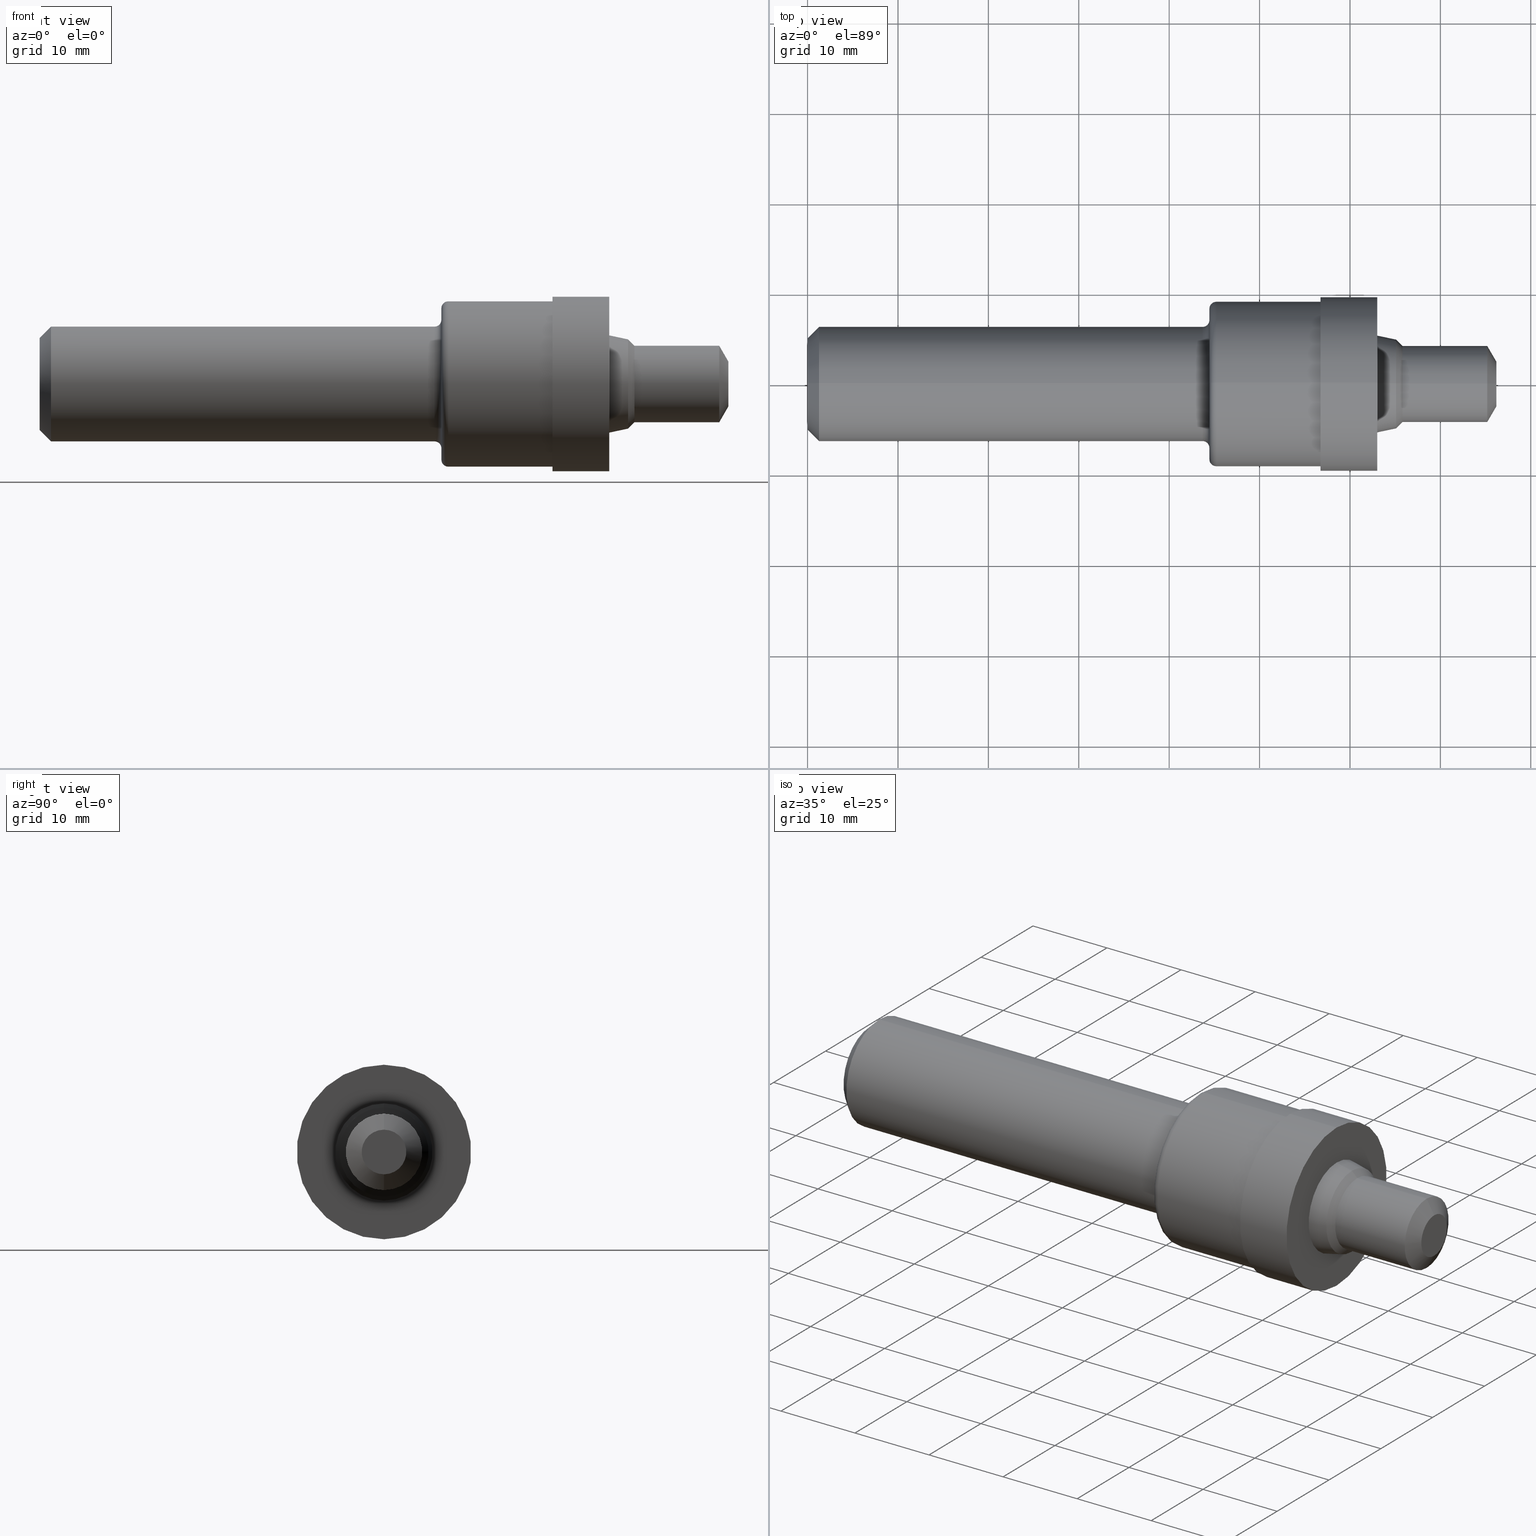
[diagram: canonical four-view strip — front | top / right | iso, engineering-drawing reading convention]
A machine part, canonical four-view strip (front | top / right | iso — engineering-drawing reading convention). The complete STEP part file that produces these views, byte-faithful:
ISO-10303-21;
HEADER;
FILE_DESCRIPTION (( 'STEP AP214' ),
    '1' );
FILE_NAME ('MS16142-3R-SolidModel.STEP',
    '2018-05-15T17:36:39',
    ( '' ),
    ( '' ),
    'SwSTEP 2.0',
    'SolidWorks 2017',
    '' );
FILE_SCHEMA (( 'AUTOMOTIVE_DESIGN' ));
ENDSEC;

DATA;
#1 = VERTEX_POINT ( 'NONE', #440 ) ;
#2 = EDGE_LOOP ( 'NONE', ( #675, #311, #480, #378 ) ) ;
#3 = EDGE_LOOP ( 'NONE', ( #428, #34 ) ) ;
#4 = ORIENTED_EDGE ( 'NONE', *, *, #609, .T. ) ;
#5 = ORIENTED_EDGE ( 'NONE', *, *, #504, .F. ) ;
#6 = DIRECTION ( 'NONE',  ( 0.0000000000000000000, 0.0000000000000000000, 1.000000000000000000 ) ) ;
#7 = MANIFOLD_SOLID_BREP ( '5BF40844-FE27-4298-8A7F-57BA77D21242-GAAFaceID13', #579 ) ;
#8 = DIRECTION ( 'NONE',  ( 0.0000000000000000000, 0.0000000000000000000, 1.000000000000000000 ) ) ;
#9 = DIRECTION ( 'NONE',  ( -1.000000000000000000, -0.0000000000000000000, -0.0000000000000000000 ) ) ;
#10 = DIRECTION ( 'NONE',  ( 0.0000000000000000000, -1.224646799147352200E-016, 1.000000000000000000 ) ) ;
#11 = CARTESIAN_POINT ( 'NONE',  ( 0.0000000000000000000, 0.0000000000000000000, 0.0000000000000000000 ) ) ;
#12 = ORIENTED_EDGE ( 'NONE', *, *, #274, .F. ) ;
#13 =( NAMED_UNIT ( * ) SI_UNIT ( $, .STERADIAN. ) SOLID_ANGLE_UNIT ( ) );
#14 = EDGE_CURVE ( 'NONE', #487, #216, #262, .T. ) ;
#15 = DIRECTION ( 'NONE',  ( -1.000000000000000000, -0.0000000000000000000, -0.0000000000000000000 ) ) ;
#16 = LINE ( 'NONE', #194, #589 ) ;
#17 = DIRECTION ( 'NONE',  ( -1.000000000000000000, -0.0000000000000000000, -0.0000000000000000000 ) ) ;
#18 = ORIENTED_EDGE ( 'NONE', *, *, #539, .F. ) ;
#19 = DIRECTION ( 'NONE',  ( -1.000000000000000000, -0.0000000000000000000, -0.0000000000000000000 ) ) ;
#20 = PRODUCT ( 'MS16142-3R-SolidModel', 'MS16142-3R-SolidModel', '', ( #651 ) ) ;
#21 = DIRECTION ( 'NONE',  ( -1.000000000000000000, -0.0000000000000000000, -0.0000000000000000000 ) ) ;
#22 = CARTESIAN_POINT ( 'NONE',  ( 2.563000000000000200, 0.0000000000000000000, 0.0000000000000000000 ) ) ;
#23 =( LENGTH_UNIT ( ) NAMED_UNIT ( * ) SI_UNIT ( $, .METRE. ) );
#24 = EDGE_CURVE ( 'NONE', #384, #535, #683, .T. ) ;
#25 = DIRECTION ( 'NONE',  ( 0.0000000000000000000, 0.0000000000000000000, 1.000000000000000000 ) ) ;
#26 = EDGE_CURVE ( 'NONE', #600, #108, #129, .T. ) ;
#27 = FACE_BOUND ( 'NONE', #3, .T. ) ;
#28 = PRESENTATION_LAYER_ASSIGNMENT (  '', '', ( #688 ) ) ;
#29 = CIRCLE ( 'NONE', #106, 0.1943203619430581800 ) ;
#30 = DIRECTION ( 'NONE',  ( 1.000000000000000000, 0.0000000000000000000, 0.0000000000000000000 ) ) ;
#31 = ADVANCED_FACE ( 'NONE', ( #415 ), #214, .F. ) ;
#32 = ORIENTED_EDGE ( 'NONE', *, *, #160, .T. ) ;
#33 = CARTESIAN_POINT ( 'NONE',  ( 2.563000000000000200, 2.486463844910866900E-017, -0.1943203619430581800 ) ) ;
#34 = ORIENTED_EDGE ( 'NONE', *, *, #316, .T. ) ;
#35 = AXIS2_PLACEMENT_3D ( 'NONE', #225, #554, #173 ) ;
#36 = DIRECTION ( 'NONE',  ( 0.0000000000000000000, 0.0000000000000000000, 1.000000000000000000 ) ) ;
#37 = EDGE_LOOP ( 'NONE', ( #572, #297, #574, #532 ) ) ;
#38 = DIRECTION ( 'NONE',  ( -1.000000000000000000, -0.0000000000000000000, -0.0000000000000000000 ) ) ;
#39 = CIRCLE ( 'NONE', #323, 0.1943203619430581800 ) ;
#40 = ORIENTED_EDGE ( 'NONE', *, *, #306, .F. ) ;
#41 = DIRECTION ( 'NONE',  ( 0.0000000000000000000, 0.0000000000000000000, 1.000000000000000000 ) ) ;
#42 = AXIS2_PLACEMENT_3D ( 'NONE', #603, #224, #391 ) ;
#43 = CARTESIAN_POINT ( 'NONE',  ( 1.720000000000000000, 0.0000000000000000000, 0.0000000000000000000 ) ) ;
#44 = VECTOR ( 'NONE', #62, 39.37007874015748100 ) ;
#45 = DIRECTION ( 'NONE',  ( -1.000000000000000000, -0.0000000000000000000, -0.0000000000000000000 ) ) ;
#46 = LENGTH_MEASURE_WITH_UNIT ( LENGTH_MEASURE( 0.02539999999999999900 ), #551 );
#47 = VECTOR ( 'NONE', #131, 39.37007874015748900 ) ;
#48 = AXIS2_PLACEMENT_3D ( 'NONE', #235, #619, #290 ) ;
#49 = ORIENTED_EDGE ( 'NONE', *, *, #207, .F. ) ;
#50 = EDGE_LOOP ( 'NONE', ( #596, #269, #32, #586 ) ) ;
#51 = ORIENTED_EDGE ( 'NONE', *, *, #264, .T. ) ;
#52 = CIRCLE ( 'NONE', #253, 0.3799999999999999500 ) ;
#53 = VERTEX_POINT ( 'NONE', #177 ) ;
#54 = EDGE_CURVE ( 'NONE', #384, #317, #249, .T. ) ;
#55 = LENGTH_MEASURE_WITH_UNIT ( LENGTH_MEASURE( 0.02539999999999999900 ), #178 );
#56 = CIRCLE ( 'NONE', #587, 0.1665000000000000100 ) ;
#57 = VECTOR ( 'NONE', #611, 39.37007874015748900 ) ;
#58 = STYLED_ITEM ( 'NONE', ( #208 ), #7 ) ;
#59 = EDGE_CURVE ( 'NONE', #204, #367, #113, .T. ) ;
#60 = MECHANICAL_DESIGN_GEOMETRIC_PRESENTATION_REPRESENTATION (  '', ( #688 ), #103 ) ;
#61 = VERTEX_POINT ( 'NONE', #509 ) ;
#62 = DIRECTION ( 'NONE',  ( -1.000000000000000000, -0.0000000000000000000, -0.0000000000000000000 ) ) ;
#63 = CARTESIAN_POINT ( 'NONE',  ( 2.590820361943058100, 2.209387506603778400E-017, -0.1665000000000000100 ) ) ;
#64 = DIRECTION ( 'NONE',  ( -1.000000000000000000, -0.0000000000000000000, -0.0000000000000000000 ) ) ;
#65 = AXIS2_PLACEMENT_3D ( 'NONE', #11, #80, #430 ) ;
#66 =( NAMED_UNIT ( * ) SI_UNIT ( $, .STERADIAN. ) SOLID_ANGLE_UNIT ( ) );
#67 = CARTESIAN_POINT ( 'NONE',  ( 1.750000000000000000, 0.0000000000000000000, 0.0000000000000000000 ) ) ;
#68 = ORIENTED_EDGE ( 'NONE', *, *, #26, .T. ) ;
#69 = CARTESIAN_POINT ( 'NONE',  ( 3.000000000000000400, 0.0000000000000000000, 0.09721796769724436200 ) ) ;
#70 = CARTESIAN_POINT ( 'NONE',  ( 0.05000000000000000300, 3.059780027669662500E-017, 0.2498500000000000400 ) ) ;
#71 = LINE ( 'NONE', #674, #315 ) ;
#72 = DIRECTION ( 'NONE',  ( -1.000000000000000000, -0.0000000000000000000, -0.0000000000000000000 ) ) ;
#73 = EDGE_LOOP ( 'NONE', ( #278, #692, #313, #636 ) ) ;
#74 = DIRECTION ( 'NONE',  ( 0.0000000000000000000, 0.0000000000000000000, 1.000000000000000000 ) ) ;
#75 = CARTESIAN_POINT ( 'NONE',  ( 0.0000000000000000000, 0.0000000000000000000, 0.0000000000000000000 ) ) ;
#76 = CARTESIAN_POINT ( 'NONE',  ( 0.0000000000000000000, 0.0000000000000000000, 0.1665000000000000100 ) ) ;
#77 = AXIS2_PLACEMENT_3D ( 'NONE', #182, #374, #133 ) ;
#78 = DIRECTION ( 'NONE',  ( 0.0000000000000000000, 0.0000000000000000000, 1.000000000000000000 ) ) ;
#79 = FACE_OUTER_BOUND ( 'NONE', #50, .T. ) ;
#80 = DIRECTION ( 'NONE',  ( -1.000000000000000000, -0.0000000000000000000, -0.0000000000000000000 ) ) ;
#81 = ADVANCED_FACE ( 'NONE', ( #668 ), #360, .T. ) ;
#82 = LINE ( 'NONE', #447, #508 ) ;
#83 = ORIENTED_EDGE ( 'NONE', *, *, #531, .T. ) ;
#84 = SURFACE_SIDE_STYLE ('',( #356 ) ) ;
#85 = ORIENTED_EDGE ( 'NONE', *, *, #569, .F. ) ;
#86 = PLANE ( 'NONE',  #211 ) ;
#87 = DIRECTION ( 'NONE',  ( -0.7071067811865470200, 0.0000000000000000000, 0.7071067811865479100 ) ) ;
#88 = DIRECTION ( 'NONE',  ( 0.0000000000000000000, -1.000000000000000000, 0.0000000000000000000 ) ) ;
#89 = ORIENTED_EDGE ( 'NONE', *, *, #24, .F. ) ;
#90 = DIRECTION ( 'NONE',  ( -1.000000000000000000, -0.0000000000000000000, -0.0000000000000000000 ) ) ;
#91 = CONICAL_SURFACE ( 'NONE', #202, 0.09721796769724436200, 1.047197551196600100 ) ;
#92 = ORIENTED_EDGE ( 'NONE', *, *, #277, .T. ) ;
#93 = DIRECTION ( 'NONE',  ( -1.000000000000000000, -0.0000000000000000000, -0.0000000000000000000 ) ) ;
#94 = ORIENTED_EDGE ( 'NONE', *, *, #539, .T. ) ;
#95 = EDGE_CURVE ( 'NONE', #317, #322, #644, .T. ) ;
#96 = CARTESIAN_POINT ( 'NONE',  ( 0.0000000000000000000, 4.653657836759941700E-017, -0.3799999999999999500 ) ) ;
#97 = VECTOR ( 'NONE', #689, 39.37007874015748100 ) ;
#98 = CIRCLE ( 'NONE', #489, 0.3799999999999999500 ) ;
#99 = DIRECTION ( 'NONE',  ( 0.0000000000000000000, 0.0000000000000000000, 1.000000000000000000 ) ) ;
#100 = PRESENTATION_LAYER_ASSIGNMENT (  '', '', ( #58 ) ) ;
#101 = EDGE_CURVE ( 'NONE', #459, #584, #371, .T. ) ;
#102 = CARTESIAN_POINT ( 'NONE',  ( 0.0000000000000000000, 0.0000000000000000000, 0.0000000000000000000 ) ) ;
#103 =( GEOMETRIC_REPRESENTATION_CONTEXT ( 3 ) GLOBAL_UNCERTAINTY_ASSIGNED_CONTEXT ( ( #635 ) ) GLOBAL_UNIT_ASSIGNED_CONTEXT ( ( #377, #437, #66 ) ) REPRESENTATION_CONTEXT ( 'NONE', 'WORKASPACE' ) );
#104 = CONICAL_SURFACE ( 'NONE', #429, 0.1665000000000000100, 0.7853981633974489500 ) ;
#105 = ORIENTED_EDGE ( 'NONE', *, *, #531, .F. ) ;
#106 = AXIS2_PLACEMENT_3D ( 'NONE', #658, #505, #284 ) ;
#107 = FACE_OUTER_BOUND ( 'NONE', #559, .T. ) ;
#108 = VERTEX_POINT ( 'NONE', #555 ) ;
#109 = VERTEX_POINT ( 'NONE', #492 ) ;
#110 = ORIENTED_EDGE ( 'NONE', *, *, #348, .T. ) ;
#111 = EDGE_CURVE ( 'NONE', #460, #53, #98, .T. ) ;
#112 = CIRCLE ( 'NONE', #369, 0.1998500000000001700 ) ;
#113 = CIRCLE ( 'NONE', #305, 0.2798500000000004300 ) ;
#114 = AXIS2_PLACEMENT_3D ( 'NONE', #503, #19, #227 ) ;
#115 = EDGE_LOOP ( 'NONE', ( #435, #260, #590, #468 ) ) ;
#116 = DIMENSIONAL_EXPONENTS ( 1.000000000000000000, 0.0000000000000000000, 0.0000000000000000000, 0.0000000000000000000, 0.0000000000000000000, 0.0000000000000000000, 0.0000000000000000000 ) ;
#117 = ORIENTED_EDGE ( 'NONE', *, *, #236, .T. ) ;
#118 = CARTESIAN_POINT ( 'NONE',  ( 2.234000000000000400, 0.0000000000000000000, 0.0000000000000000000 ) ) ;
#119 = VECTOR ( 'NONE', #130, 39.37007874015748100 ) ;
#120 = ORIENTED_EDGE ( 'NONE', *, *, #373, .F. ) ;
#121 = DIRECTION ( 'NONE',  ( 0.0000000000000000000, 0.0000000000000000000, 1.000000000000000000 ) ) ;
#122 = DIRECTION ( 'NONE',  ( -1.000000000000000000, -0.0000000000000000000, -0.0000000000000000000 ) ) ;
#123 = CARTESIAN_POINT ( 'NONE',  ( 1.779999999999999800, 0.0000000000000000000, 0.0000000000000000000 ) ) ;
#124 = DIRECTION ( 'NONE',  ( -0.0000000000000000000, 0.0000000000000000000, 1.000000000000000000 ) ) ;
#125 = ADVANCED_FACE ( 'NONE', ( #540 ), #632, .T. ) ;
#126 = CIRCLE ( 'NONE', #477, 0.2498500000000000400 ) ;
#127 = DIRECTION ( 'NONE',  ( 0.0000000000000000000, 0.0000000000000000000, 1.000000000000000000 ) ) ;
#128 = APPLICATION_PROTOCOL_DEFINITION ( 'draft international standard', 'automotive_design', 1998, #276 ) ;
#129 = LINE ( 'NONE', #76, #396 ) ;
#130 = DIRECTION ( 'NONE',  ( -0.9781476007338054700, 0.0000000000000000000, 0.2079116908177598400 ) ) ;
#131 = DIRECTION ( 'NONE',  ( -0.4999999999999979500, 1.060575238724908000E-016, -0.8660254037844397100 ) ) ;
#132 = DIRECTION ( 'NONE',  ( 0.0000000000000000000, 0.0000000000000000000, 1.000000000000000000 ) ) ;
#133 = DIRECTION ( 'NONE',  ( 0.0000000000000000000, 0.0000000000000000000, -1.000000000000000000 ) ) ;
#134 = CARTESIAN_POINT ( 'NONE',  ( 2.481000000000000300, 0.0000000000000000000, 0.2117499999999999900 ) ) ;
#135 = ORIENTED_EDGE ( 'NONE', *, *, #536, .F. ) ;
#136 = PLANE ( 'NONE',  #399 ) ;
#137 = MECHANICAL_DESIGN_GEOMETRIC_PRESENTATION_REPRESENTATION (  '', ( #58 ), #159 ) ;
#138 = DIRECTION ( 'NONE',  ( -1.000000000000000000, -0.0000000000000000000, -0.0000000000000000000 ) ) ;
#139 = EDGE_CURVE ( 'NONE', #223, #349, #82, .T. ) ;
#140 = DIRECTION ( 'NONE',  ( -1.000000000000000000, -0.0000000000000000000, -0.0000000000000000000 ) ) ;
#141 = ORIENTED_EDGE ( 'NONE', *, *, #146, .T. ) ;
#142 = SHAPE_DEFINITION_REPRESENTATION ( #639, #189 ) ;
#143 = AXIS2_PLACEMENT_3D ( 'NONE', #662, #279, #229 ) ;
#144 = UNCERTAINTY_MEASURE_WITH_UNIT (LENGTH_MEASURE( 1.000000000000000100E-005 ), #602, 'distance_accuracy_value', 'NONE');
#145 = DIRECTION ( 'NONE',  ( 0.0000000000000000000, 0.0000000000000000000, 1.000000000000000000 ) ) ;
#146 = EDGE_CURVE ( 'NONE', #584, #459, #210, .T. ) ;
#147 = ORIENTED_EDGE ( 'NONE', *, *, #641, .F. ) ;
#148 = DIRECTION ( 'NONE',  ( -1.000000000000000000, -0.0000000000000000000, -0.0000000000000000000 ) ) ;
#149 = FACE_OUTER_BOUND ( 'NONE', #245, .T. ) ;
#150 = CARTESIAN_POINT ( 'NONE',  ( 1.750000000000000000, 4.225031457058367200E-017, -0.3299999999999999000 ) ) ;
#151 = DIRECTION ( 'NONE',  ( 0.0000000000000000000, 0.0000000000000000000, 1.000000000000000000 ) ) ;
#152 = AXIS2_PLACEMENT_3D ( 'NONE', #347, #30, #404 ) ;
#153 = CARTESIAN_POINT ( 'NONE',  ( 0.0000000000000000000, 0.0000000000000000000, 0.2498500000000002700 ) ) ;
#154 = ORIENTED_EDGE ( 'NONE', *, *, #111, .T. ) ;
#155 = ORIENTED_EDGE ( 'NONE', *, *, #14, .F. ) ;
#156 = ORIENTED_EDGE ( 'NONE', *, *, #469, .F. ) ;
#157 = VERTEX_POINT ( 'NONE', #286 ) ;
#158 = CIRCLE ( 'NONE', #361, 0.2798500000000004300 ) ;
#159 =( GEOMETRIC_REPRESENTATION_CONTEXT ( 3 ) GLOBAL_UNCERTAINTY_ASSIGNED_CONTEXT ( ( #144 ) ) GLOBAL_UNIT_ASSIGNED_CONTEXT ( ( #602, #507, #13 ) ) REPRESENTATION_CONTEXT ( 'NONE', 'WORKASPACE' ) );
#160 = EDGE_CURVE ( 'NONE', #584, #600, #197, .T. ) ;
#161 = CYLINDRICAL_SURFACE ( 'NONE', #65, 0.3799999999999999500 ) ;
#162 = CARTESIAN_POINT ( 'NONE',  ( 1.750000000000000000, 0.0000000000000000000, 0.3299999999999999000 ) ) ;
#163 = ORIENTED_EDGE ( 'NONE', *, *, #424, .T. ) ;
#164 = DIRECTION ( 'NONE',  ( 0.0000000000000000000, -1.224646799147353700E-016, 1.000000000000000000 ) ) ;
#165 = ORIENTED_EDGE ( 'NONE', *, *, #59, .T. ) ;
#166 = DIRECTION ( 'NONE',  ( -0.0000000000000000000, 0.0000000000000000000, 1.000000000000000000 ) ) ;
#167 = AXIS2_PLACEMENT_3D ( 'NONE', #557, #449, #397 ) ;
#168 = DIRECTION ( 'NONE',  ( 0.0000000000000000000, 0.0000000000000000000, 1.000000000000000000 ) ) ;
#169 = CARTESIAN_POINT ( 'NONE',  ( 3.000000000000000400, 0.0000000000000000000, 0.0000000000000000000 ) ) ;
#170 = ORIENTED_EDGE ( 'NONE', *, *, #59, .F. ) ;
#171 = DIRECTION ( 'NONE',  ( -1.000000000000000000, -0.0000000000000000000, -0.0000000000000000000 ) ) ;
#172 = EDGE_CURVE ( 'NONE', #600, #365, #231, .T. ) ;
#173 = DIRECTION ( 'NONE',  ( 0.0000000000000000000, 0.0000000000000000000, -1.000000000000000000 ) ) ;
#174 = TOROIDAL_SURFACE ( 'NONE', #363, 0.3299999999999999000, 0.03000000000000002300 ) ;
#175 = ORIENTED_EDGE ( 'NONE', *, *, #246, .F. ) ;
#176 = FILL_AREA_STYLE ('',( #552 ) ) ;
#177 = CARTESIAN_POINT ( 'NONE',  ( 2.234000000000000400, 0.0000000000000000000, 0.3799999999999999500 ) ) ;
#178 =( LENGTH_UNIT ( ) NAMED_UNIT ( * ) SI_UNIT ( $, .METRE. ) );
#179 = DIRECTION ( 'NONE',  ( -1.000000000000000000, -0.0000000000000000000, -0.0000000000000000000 ) ) ;
#180 = FACE_OUTER_BOUND ( 'NONE', #621, .T. ) ;
#181 = ADVANCED_FACE ( 'NONE', ( #485 ), #183, .T. ) ;
#182 = CARTESIAN_POINT ( 'NONE',  ( 2.234000000000000400, 0.3599999999999999900, 0.0000000000000000000 ) ) ;
#183 = CYLINDRICAL_SURFACE ( 'NONE', #691, 0.1665000000000000100 ) ;
#184 = CARTESIAN_POINT ( 'NONE',  ( 1.750000000000000000, 0.3299999999999999000, 0.0000000000000000000 ) ) ;
#185 = AXIS2_PLACEMENT_3D ( 'NONE', #409, #88, #462 ) ;
#186 = EDGE_LOOP ( 'NONE', ( #541, #175 ) ) ;
#187 = DIRECTION ( 'NONE',  ( 0.0000000000000000000, 0.0000000000000000000, -1.000000000000000000 ) ) ;
#188 = ORIENTED_EDGE ( 'NONE', *, *, #373, .T. ) ;
#189 = ADVANCED_BREP_SHAPE_REPRESENTATION ( 'MS16142-3R-SolidModel', ( #7, #455 ), #617 ) ;
#190 = DIRECTION ( 'NONE',  ( -1.000000000000000000, -0.0000000000000000000, -0.0000000000000000000 ) ) ;
#191 = VERTEX_POINT ( 'NONE', #230 ) ;
#192 = CIRCLE ( 'NONE', #185, 0.03000000000000002300 ) ;
#193 = ORIENTED_EDGE ( 'NONE', *, *, #353, .T. ) ;
#194 = CARTESIAN_POINT ( 'NONE',  ( 0.05000000000000000300, 3.059780027669662500E-017, 0.2498500000000000400 ) ) ;
#195 = FACE_BOUND ( 'NONE', #383, .T. ) ;
#196 = PRESENTATION_STYLE_ASSIGNMENT (( #218 ) ) ;
#197 = LINE ( 'NONE', #69, #57 ) ;
#198 = AXIS2_PLACEMENT_3D ( 'NONE', #443, #275, #132 ) ;
#199 = EDGE_CURVE ( 'NONE', #459, #365, #473, .T. ) ;
#200 = DIRECTION ( 'NONE',  ( 0.0000000000000000000, 0.0000000000000000000, -1.000000000000000000 ) ) ;
#201 = VERTEX_POINT ( 'NONE', #134 ) ;
#202 = AXIS2_PLACEMENT_3D ( 'NONE', #669, #21, #610 ) ;
#203 = EDGE_LOOP ( 'NONE', ( #259, #368, #650, #359 ) ) ;
#204 = VERTEX_POINT ( 'NONE', #439 ) ;
#205 = FACE_OUTER_BOUND ( 'NONE', #238, .T. ) ;
#206 = ORIENTED_EDGE ( 'NONE', *, *, #504, .T. ) ;
#207 = EDGE_CURVE ( 'NONE', #317, #487, #616, .T. ) ;
#208 = PRESENTATION_STYLE_ASSIGNMENT (( #405 ) ) ;
#209 = CONICAL_SURFACE ( 'NONE', #444, 0.2498500000000000400, 0.7853981633974470600 ) ;
#210 = CIRCLE ( 'NONE', #546, 0.09721796769724436200 ) ;
#211 = AXIS2_PLACEMENT_3D ( 'NONE', #184, #561, #187 ) ;
#212 = DIRECTION ( 'NONE',  ( -1.000000000000000000, 0.0000000000000000000, -0.0000000000000000000 ) ) ;
#213 = DIRECTION ( 'NONE',  ( 0.0000000000000000000, 0.0000000000000000000, 1.000000000000000000 ) ) ;
#214 = PLANE ( 'NONE',  #346 ) ;
#215 = DIRECTION ( 'NONE',  ( 0.0000000000000000000, 0.0000000000000000000, 1.000000000000000000 ) ) ;
#216 = VERTEX_POINT ( 'NONE', #162 ) ;
#217 = CARTESIAN_POINT ( 'NONE',  ( 0.0000000000000000000, 4.408728476930471600E-017, -0.3599999999999999900 ) ) ;
#218 = SURFACE_STYLE_USAGE ( .BOTH. , #661 ) ;
#219 = CARTESIAN_POINT ( 'NONE',  ( 0.05000000000000000300, 0.0000000000000000000, 0.0000000000000000000 ) ) ;
#220 = VECTOR ( 'NONE', #87, 39.37007874015748900 ) ;
#221 = ORIENTED_EDGE ( 'NONE', *, *, #146, .F. ) ;
#222 =( NAMED_UNIT ( * ) PLANE_ANGLE_UNIT ( ) SI_UNIT ( $, .RADIAN. ) );
#223 = VERTEX_POINT ( 'NONE', #63 ) ;
#224 = DIRECTION ( 'NONE',  ( -1.000000000000000000, -0.0000000000000000000, -0.0000000000000000000 ) ) ;
#225 = CARTESIAN_POINT ( 'NONE',  ( 1.720000000000000000, 0.0000000000000000000, 0.2798500000000004300 ) ) ;
#226 = CARTESIAN_POINT ( 'NONE',  ( 1.779999999999999800, 0.0000000000000000000, 0.0000000000000000000 ) ) ;
#227 = DIRECTION ( 'NONE',  ( 0.0000000000000000000, 0.0000000000000000000, 1.000000000000000000 ) ) ;
#228 = TOROIDAL_SURFACE ( 'NONE', #524, 0.2798500000000004300, 0.02999999999999995400 ) ;
#229 = DIRECTION ( 'NONE',  ( 0.0000000000000000000, 0.0000000000000000000, 1.000000000000000000 ) ) ;
#230 = CARTESIAN_POINT ( 'NONE',  ( 0.0000000000000000000, 2.753618327882825200E-017, 0.1998500000000001700 ) ) ;
#231 = CIRCLE ( 'NONE', #516, 0.1665000000000000100 ) ;
#232 = DIRECTION ( 'NONE',  ( 0.0000000000000000000, 0.0000000000000000000, 1.000000000000000000 ) ) ;
#233 = ADVANCED_FACE ( 'NONE', ( #343 ), #161, .T. ) ;
#234 = AXIS2_PLACEMENT_3D ( 'NONE', #395, #17, #127 ) ;
#235 = CARTESIAN_POINT ( 'NONE',  ( 2.481000000000000300, 0.0000000000000000000, 0.0000000000000000000 ) ) ;
#236 = EDGE_CURVE ( 'NONE', #61, #367, #304, .T. ) ;
#237 = CARTESIAN_POINT ( 'NONE',  ( 2.481000000000000300, 0.0000000000000000000, 0.0000000000000000000 ) ) ;
#238 = EDGE_LOOP ( 'NONE', ( #92, #678 ) ) ;
#239 = AXIS2_PLACEMENT_3D ( 'NONE', #75, #15, #337 ) ;
#240 = CARTESIAN_POINT ( 'NONE',  ( 2.234000000000000400, 4.408728476930471600E-017, -0.3599999999999999900 ) ) ;
#241 = CIRCLE ( 'NONE', #272, 0.2498500000000004900 ) ;
#242 = EDGE_LOOP ( 'NONE', ( #94, #518, #410, #379 ) ) ;
#243 = ORIENTED_EDGE ( 'NONE', *, *, #277, .F. ) ;
#244 = CARTESIAN_POINT ( 'NONE',  ( 2.481000000000000300, 0.0000000000000000000, 0.3799999999999999500 ) ) ;
#245 = EDGE_LOOP ( 'NONE', ( #446, #188, #523, #105 ) ) ;
#246 = EDGE_CURVE ( 'NONE', #351, #401, #320, .T. ) ;
#247 = DIRECTION ( 'NONE',  ( 0.7071067811865483500, 8.659560562354923000E-017, 0.7071067811865465700 ) ) ;
#248 = FACE_OUTER_BOUND ( 'NONE', #73, .T. ) ;
#249 = LINE ( 'NONE', #217, #527 ) ;
#250 = DIRECTION ( 'NONE',  ( -1.000000000000000000, -0.0000000000000000000, -0.0000000000000000000 ) ) ;
#251 = ORIENTED_EDGE ( 'NONE', *, *, #571, .F. ) ;
#252 = DIRECTION ( 'NONE',  ( -1.000000000000000000, -0.0000000000000000000, -0.0000000000000000000 ) ) ;
#253 = AXIS2_PLACEMENT_3D ( 'NONE', #237, #624, #295 ) ;
#254 = CIRCLE ( 'NONE', #542, 0.3599999999999999900 ) ;
#255 = DIRECTION ( 'NONE',  ( 0.0000000000000000000, 0.0000000000000000000, 1.000000000000000000 ) ) ;
#256 = ORIENTED_EDGE ( 'NONE', *, *, #469, .T. ) ;
#257 = EDGE_CURVE ( 'NONE', #535, #322, #454, .T. ) ;
#258 = LINE ( 'NONE', #648, #119 ) ;
#259 = ORIENTED_EDGE ( 'NONE', *, *, #682, .T. ) ;
#260 = ORIENTED_EDGE ( 'NONE', *, *, #246, .T. ) ;
#261 = CIRCLE ( 'NONE', #298, 0.2117499999999999900 ) ;
#262 = CIRCLE ( 'NONE', #198, 0.3299999999999999000 ) ;
#263 = ORIENTED_EDGE ( 'NONE', *, *, #236, .F. ) ;
#264 = EDGE_CURVE ( 'NONE', #109, #349, #29, .T. ) ;
#265 = CARTESIAN_POINT ( 'NONE',  ( 3.000000000000000400, 1.190576729600410900E-017, -0.09721796769724436200 ) ) ;
#266 = CARTESIAN_POINT ( 'NONE',  ( 2.590820361943058100, 0.0000000000000000000, 0.0000000000000000000 ) ) ;
#267 = ORIENTED_EDGE ( 'NONE', *, *, #392, .F. ) ;
#268 = DIRECTION ( 'NONE',  ( 0.0000000000000000000, 0.0000000000000000000, 1.000000000000000000 ) ) ;
#269 = ORIENTED_EDGE ( 'NONE', *, *, #101, .T. ) ;
#270 = APPLICATION_CONTEXT ( 'automotive_design' ) ;
#271 = DIRECTION ( 'NONE',  ( -1.000000000000000000, -0.0000000000000000000, -0.0000000000000000000 ) ) ;
#272 = AXIS2_PLACEMENT_3D ( 'NONE', #671, #344, #25 ) ;
#273 = DIRECTION ( 'NONE',  ( -1.000000000000000000, 0.0000000000000000000, -0.0000000000000000000 ) ) ;
#274 = EDGE_CURVE ( 'NONE', #109, #201, #258, .T. ) ;
#275 = DIRECTION ( 'NONE',  ( -1.000000000000000000, -0.0000000000000000000, -0.0000000000000000000 ) ) ;
#276 = APPLICATION_CONTEXT ( 'automotive_design' ) ;
#277 = EDGE_CURVE ( 'NONE', #216, #487, #533, .T. ) ;
#278 = ORIENTED_EDGE ( 'NONE', *, *, #424, .F. ) ;
#279 = DIRECTION ( 'NONE',  ( -1.000000000000000000, -0.0000000000000000000, -0.0000000000000000000 ) ) ;
#280 = CARTESIAN_POINT ( 'NONE',  ( 1.779999999999999800, 4.041334437186264000E-017, -0.3299999999999999000 ) ) ;
#281 = ADVANCED_FACE ( 'NONE', ( #502 ), #654, .T. ) ;
#282 = CARTESIAN_POINT ( 'NONE',  ( 2.234000000000000400, 0.0000000000000000000, 0.0000000000000000000 ) ) ;
#283 = CYLINDRICAL_SURFACE ( 'NONE', #515, 0.3799999999999999500 ) ;
#284 = DIRECTION ( 'NONE',  ( 0.0000000000000000000, 0.0000000000000000000, 1.000000000000000000 ) ) ;
#285 = ORIENTED_EDGE ( 'NONE', *, *, #536, .T. ) ;
#286 = CARTESIAN_POINT ( 'NONE',  ( 0.0000000000000000000, 0.0000000000000000000, -0.1998500000000001700 ) ) ;
#287 = DIRECTION ( 'NONE',  ( -1.000000000000000000, -0.0000000000000000000, -0.0000000000000000000 ) ) ;
#288 = ADVANCED_FACE ( 'NONE', ( #676 ), #91, .T. ) ;
#289 = CARTESIAN_POINT ( 'NONE',  ( 1.779999999999999800, 0.0000000000000000000, 0.0000000000000000000 ) ) ;
#290 = DIRECTION ( 'NONE',  ( 0.0000000000000000000, 0.0000000000000000000, 1.000000000000000000 ) ) ;
#291 = ADVANCED_FACE ( 'NONE', ( #107 ), #497, .T. ) ;
#292 = AXIS2_PLACEMENT_3D ( 'NONE', #563, #140, #457 ) ;
#293 = CARTESIAN_POINT ( 'NONE',  ( 1.720000000000000000, 3.059780027669668100E-017, -0.2498500000000004900 ) ) ;
#294 = EDGE_LOOP ( 'NONE', ( #308, #329, #243, #634 ) ) ;
#295 = DIRECTION ( 'NONE',  ( 0.0000000000000000000, 0.0000000000000000000, 1.000000000000000000 ) ) ;
#296 = CARTESIAN_POINT ( 'NONE',  ( 2.563000000000000200, 0.0000000000000000000, 0.0000000000000000000 ) ) ;
#297 = ORIENTED_EDGE ( 'NONE', *, *, #392, .T. ) ;
#298 = AXIS2_PLACEMENT_3D ( 'NONE', #302, #687, #362 ) ;
#299 = CARTESIAN_POINT ( 'NONE',  ( 3.000000000000000400, 1.614806825090377000E-017, -0.09721796769724436200 ) ) ;
#300 = TOROIDAL_SURFACE ( 'NONE', #407, 0.2798500000000004300, 0.02999999999999995400 ) ;
#301 = ORIENTED_EDGE ( 'NONE', *, *, #605, .F. ) ;
#302 = CARTESIAN_POINT ( 'NONE',  ( 2.481000000000000300, 0.0000000000000000000, 0.0000000000000000000 ) ) ;
#303 = FACE_OUTER_BOUND ( 'NONE', #423, .T. ) ;
#304 = CIRCLE ( 'NONE', #35, 0.02999999999999995400 ) ;
#305 = AXIS2_PLACEMENT_3D ( 'NONE', #325, #339, #591 ) ;
#306 = EDGE_CURVE ( 'NONE', #61, #354, #241, .T. ) ;
#307 = CARTESIAN_POINT ( 'NONE',  ( 1.720000000000000000, 0.0000000000000000000, 0.0000000000000000000 ) ) ;
#308 = ORIENTED_EDGE ( 'NONE', *, *, #686, .T. ) ;
#309 = CARTESIAN_POINT ( 'NONE',  ( 3.000000000000000400, 0.0000000000000000000, 0.0000000000000000000 ) ) ;
#310 = ORIENTED_EDGE ( 'NONE', *, *, #465, .T. ) ;
#311 = ORIENTED_EDGE ( 'NONE', *, *, #24, .T. ) ;
#312 = AXIS2_PLACEMENT_3D ( 'NONE', #452, #138, #513 ) ;
#313 = ORIENTED_EDGE ( 'NONE', *, *, #386, .T. ) ;
#314 = EDGE_CURVE ( 'NONE', #191, #157, #381, .T. ) ;
#315 = VECTOR ( 'NONE', #190, 39.37007874015748100 ) ;
#316 = EDGE_CURVE ( 'NONE', #640, #201, #520, .T. ) ;
#317 = VERTEX_POINT ( 'NONE', #615 ) ;
#318 = AXIS2_PLACEMENT_3D ( 'NONE', #123, #179, #599 ) ;
#319 = CIRCLE ( 'NONE', #42, 0.1665000000000000100 ) ;
#320 = CIRCLE ( 'NONE', #623, 0.3799999999999999500 ) ;
#321 = DIMENSIONAL_EXPONENTS ( 1.000000000000000000, 0.0000000000000000000, 0.0000000000000000000, 0.0000000000000000000, 0.0000000000000000000, 0.0000000000000000000, 0.0000000000000000000 ) ;
#322 = VERTEX_POINT ( 'NONE', #402 ) ;
#323 = AXIS2_PLACEMENT_3D ( 'NONE', #296, #680, #355 ) ;
#324 = EDGE_LOOP ( 'NONE', ( #221, #592 ) ) ;
#325 = CARTESIAN_POINT ( 'NONE',  ( 1.750000000000000000, 0.0000000000000000000, 0.0000000000000000000 ) ) ;
#326 = ADVANCED_FACE ( 'NONE', ( #352 ), #560, .F. ) ;
#327 = CARTESIAN_POINT ( 'NONE',  ( 2.960000000000000000, 0.0000000000000000000, 0.1665000000000000100 ) ) ;
#328 = DIRECTION ( 'NONE',  ( 1.000000000000000000, 0.0000000000000000000, 0.0000000000000000000 ) ) ;
#329 = ORIENTED_EDGE ( 'NONE', *, *, #207, .T. ) ;
#330 = CARTESIAN_POINT ( 'NONE',  ( 2.481000000000000300, 0.3799999999999999500, 0.0000000000000000000 ) ) ;
#331 = DIRECTION ( 'NONE',  ( 0.0000000000000000000, 0.0000000000000000000, 1.000000000000000000 ) ) ;
#332 = PRODUCT_DEFINITION_CONTEXT ( 'detailed design', #270, 'design' ) ;
#333 = CYLINDRICAL_SURFACE ( 'NONE', #292, 0.3599999999999999900 ) ;
#334 = ORIENTED_EDGE ( 'NONE', *, *, #571, .T. ) ;
#335 = AXIS2_PLACEMENT_3D ( 'NONE', #573, #684, #41 ) ;
#336 = ADVANCED_FACE ( 'NONE', ( #366, #205 ), #86, .F. ) ;
#337 = DIRECTION ( 'NONE',  ( 0.0000000000000000000, 0.0000000000000000000, 1.000000000000000000 ) ) ;
#338 = DIRECTION ( 'NONE',  ( 0.0000000000000000000, 0.0000000000000000000, 1.000000000000000000 ) ) ;
#339 = DIRECTION ( 'NONE',  ( -1.000000000000000000, -0.0000000000000000000, -0.0000000000000000000 ) ) ;
#340 = FACE_OUTER_BOUND ( 'NONE', #498, .T. ) ;
#341 = SURFACE_STYLE_FILL_AREA ( #176 ) ;
#342 = DIRECTION ( 'NONE',  ( 0.0000000000000000000, 0.0000000000000000000, 1.000000000000000000 ) ) ;
#343 = FACE_OUTER_BOUND ( 'NONE', #115, .T. ) ;
#344 = DIRECTION ( 'NONE',  ( -1.000000000000000000, -0.0000000000000000000, -0.0000000000000000000 ) ) ;
#345 = ADVANCED_FACE ( 'NONE', ( #637 ), #333, .T. ) ;
#346 = AXIS2_PLACEMENT_3D ( 'NONE', #608, #212, #124 ) ;
#347 = CARTESIAN_POINT ( 'NONE',  ( 0.0000000000000000000, 0.0000000000000000000, 0.0000000000000000000 ) ) ;
#348 = EDGE_CURVE ( 'NONE', #108, #109, #628, .T. ) ;
#349 = VERTEX_POINT ( 'NONE', #33 ) ;
#350 = EDGE_LOOP ( 'NONE', ( #566, #4, #68, #5 ) ) ;
#351 = VERTEX_POINT ( 'NONE', #461 ) ;
#352 = FACE_OUTER_BOUND ( 'NONE', #638, .T. ) ;
#353 = EDGE_CURVE ( 'NONE', #401, #351, #52, .T. ) ;
#354 = VERTEX_POINT ( 'NONE', #293 ) ;
#355 = DIRECTION ( 'NONE',  ( 0.0000000000000000000, 0.0000000000000000000, 1.000000000000000000 ) ) ;
#356 = SURFACE_STYLE_FILL_AREA ( #389 ) ;
#357 = EDGE_CURVE ( 'NONE', #322, #216, #192, .T. ) ;
#358 = LINE ( 'NONE', #153, #97 ) ;
#359 = ORIENTED_EDGE ( 'NONE', *, *, #257, .F. ) ;
#360 = CONICAL_SURFACE ( 'NONE', #372, 0.1943203619430581800, 0.2094395102393200600 ) ;
#361 = AXIS2_PLACEMENT_3D ( 'NONE', #67, #438, #121 ) ;
#362 = DIRECTION ( 'NONE',  ( 0.0000000000000000000, 0.0000000000000000000, 1.000000000000000000 ) ) ;
#363 = AXIS2_PLACEMENT_3D ( 'NONE', #519, #567, #625 ) ;
#364 = LENGTH_MEASURE_WITH_UNIT ( LENGTH_MEASURE( 0.02539999999999999900 ), #23 );
#365 = VERTEX_POINT ( 'NONE', #565 ) ;
#366 = FACE_BOUND ( 'NONE', #528, .T. ) ;
#367 = VERTEX_POINT ( 'NONE', #517 ) ;
#368 = ORIENTED_EDGE ( 'NONE', *, *, #54, .T. ) ;
#369 = AXIS2_PLACEMENT_3D ( 'NONE', #102, #474, #151 ) ;
#370 = FACE_OUTER_BOUND ( 'NONE', #629, .T. ) ;
#371 = CIRCLE ( 'NONE', #456, 0.09721796769724436200 ) ;
#372 = AXIS2_PLACEMENT_3D ( 'NONE', #22, #436, #6 ) ;
#373 = EDGE_CURVE ( 'NONE', #354, #1, #71, .T. ) ;
#374 = DIRECTION ( 'NONE',  ( 1.000000000000000000, 0.0000000000000000000, 0.0000000000000000000 ) ) ;
#375 = CONICAL_SURFACE ( 'NONE', #472, 0.2498500000000000400, 0.7853981633974470600 ) ;
#376 = ADVANCED_FACE ( 'NONE', ( #479 ), #174, .T. ) ;
#377 =( CONVERSION_BASED_UNIT ( 'INCH', #46 ) LENGTH_UNIT ( ) NAMED_UNIT ( #643 ) );
#378 = ORIENTED_EDGE ( 'NONE', *, *, #95, .F. ) ;
#379 = ORIENTED_EDGE ( 'NONE', *, *, #348, .F. ) ;
#380 = CARTESIAN_POINT ( 'NONE',  ( 0.0000000000000000000, 0.0000000000000000000, 0.0000000000000000000 ) ) ;
#381 = CIRCLE ( 'NONE', #312, 0.1998500000000001700 ) ;
#382 = ORIENTED_EDGE ( 'NONE', *, *, #386, .F. ) ;
#383 = EDGE_LOOP ( 'NONE', ( #425, #89 ) ) ;
#384 = VERTEX_POINT ( 'NONE', #240 ) ;
#385 = CARTESIAN_POINT ( 'NONE',  ( 2.590820361943058100, 0.0000000000000000000, 0.0000000000000000000 ) ) ;
#386 = EDGE_CURVE ( 'NONE', #157, #1, #585, .T. ) ;
#387 = DIRECTION ( 'NONE',  ( 0.0000000000000000000, 0.0000000000000000000, 1.000000000000000000 ) ) ;
#388 = ADVANCED_FACE ( 'NONE', ( #604 ), #300, .F. ) ;
#389 = FILL_AREA_STYLE ('',( #453 ) ) ;
#390 =( NAMED_UNIT ( * ) SI_UNIT ( $, .STERADIAN. ) SOLID_ANGLE_UNIT ( ) );
#391 = DIRECTION ( 'NONE',  ( 0.0000000000000000000, 0.0000000000000000000, 1.000000000000000000 ) ) ;
#392 = EDGE_CURVE ( 'NONE', #349, #109, #39, .T. ) ;
#393 = VECTOR ( 'NONE', #250, 39.37007874015748100 ) ;
#394 = DIRECTION ( 'NONE',  ( -1.000000000000000000, -0.0000000000000000000, -0.0000000000000000000 ) ) ;
#395 = CARTESIAN_POINT ( 'NONE',  ( 2.234000000000000400, 0.0000000000000000000, 0.0000000000000000000 ) ) ;
#396 = VECTOR ( 'NONE', #287, 39.37007874015748100 ) ;
#397 = DIRECTION ( 'NONE',  ( 0.0000000000000000000, 0.0000000000000000000, 1.000000000000000000 ) ) ;
#398 = CARTESIAN_POINT ( 'NONE',  ( 2.960000000000000000, 0.0000000000000000000, 0.0000000000000000000 ) ) ;
#399 = AXIS2_PLACEMENT_3D ( 'NONE', #330, #273, #166 ) ;
#400 =( CONVERSION_BASED_UNIT ( 'INCH', #364 ) LENGTH_UNIT ( ) NAMED_UNIT ( #321 ) );
#401 = VERTEX_POINT ( 'NONE', #244 ) ;
#402 = CARTESIAN_POINT ( 'NONE',  ( 1.779999999999999800, 0.0000000000000000000, 0.3599999999999999300 ) ) ;
#403 = ADVANCED_FACE ( 'NONE', ( #570 ), #283, .T. ) ;
#404 = DIRECTION ( 'NONE',  ( 0.0000000000000000000, 0.0000000000000000000, -1.000000000000000000 ) ) ;
#405 = SURFACE_STYLE_USAGE ( .BOTH. , #84 ) ;
#406 = CYLINDRICAL_SURFACE ( 'NONE', #512, 0.2498500000000002700 ) ;
#407 = AXIS2_PLACEMENT_3D ( 'NONE', #463, #90, #145 ) ;
#408 = CARTESIAN_POINT ( 'NONE',  ( 2.590820361943058100, 0.0000000000000000000, 0.1665000000000000100 ) ) ;
#409 = CARTESIAN_POINT ( 'NONE',  ( 1.779999999999999800, 0.0000000000000000000, 0.3299999999999999000 ) ) ;
#410 = ORIENTED_EDGE ( 'NONE', *, *, #264, .F. ) ;
#411 = DIRECTION ( 'NONE',  ( 0.7071067811865483500, 0.0000000000000000000, -0.7071067811865465700 ) ) ;
#412 = CARTESIAN_POINT ( 'NONE',  ( 2.563000000000000200, 2.379738092627213600E-017, -0.1943203619430581800 ) ) ;
#413 = LINE ( 'NONE', #96, #393 ) ;
#414 = AXIS2_PLACEMENT_3D ( 'NONE', #577, #252, #633 ) ;
#415 = FACE_OUTER_BOUND ( 'NONE', #324, .T. ) ;
#416 = CARTESIAN_POINT ( 'NONE',  ( 2.234000000000000400, 4.653657836759941700E-017, -0.3799999999999999500 ) ) ;
#417 = DIRECTION ( 'NONE',  ( -1.000000000000000000, -0.0000000000000000000, -0.0000000000000000000 ) ) ;
#418 = EDGE_LOOP ( 'NONE', ( #156, #334, #165, #263 ) ) ;
#419 = DIRECTION ( 'NONE',  ( 1.000000000000000000, 0.0000000000000000000, 0.0000000000000000000 ) ) ;
#420 = AXIS2_PLACEMENT_3D ( 'NONE', #226, #493, #268 ) ;
#421 = EDGE_CURVE ( 'NONE', #349, #640, #427, .T. ) ;
#422 = DIRECTION ( 'NONE',  ( 0.0000000000000000000, 0.0000000000000000000, 1.000000000000000000 ) ) ;
#423 = EDGE_LOOP ( 'NONE', ( #510, #163, #478, #382 ) ) ;
#424 = EDGE_CURVE ( 'NONE', #191, #581, #16, .T. ) ;
#425 = ORIENTED_EDGE ( 'NONE', *, *, #682, .F. ) ;
#426 = EDGE_CURVE ( 'NONE', #365, #223, #693, .T. ) ;
#427 = LINE ( 'NONE', #412, #467 ) ;
#428 = ORIENTED_EDGE ( 'NONE', *, *, #490, .T. ) ;
#429 = AXIS2_PLACEMENT_3D ( 'NONE', #385, #171, #168 ) ;
#430 = DIRECTION ( 'NONE',  ( 0.0000000000000000000, 0.0000000000000000000, 1.000000000000000000 ) ) ;
#431 = AXIS2_PLACEMENT_3D ( 'NONE', #43, #417, #99 ) ;
#432 = PLANE ( 'NONE',  #77 ) ;
#433 = EDGE_LOOP ( 'NONE', ( #534, #685, #18, #548 ) ) ;
#434 = DIRECTION ( 'NONE',  ( -1.000000000000000000, -0.0000000000000000000, -0.0000000000000000000 ) ) ;
#435 = ORIENTED_EDGE ( 'NONE', *, *, #465, .F. ) ;
#436 = DIRECTION ( 'NONE',  ( -1.000000000000000000, -0.0000000000000000000, -0.0000000000000000000 ) ) ;
#437 =( NAMED_UNIT ( * ) PLANE_ANGLE_UNIT ( ) SI_UNIT ( $, .RADIAN. ) );
#438 = DIRECTION ( 'NONE',  ( -1.000000000000000000, -0.0000000000000000000, -0.0000000000000000000 ) ) ;
#439 = CARTESIAN_POINT ( 'NONE',  ( 1.750000000000000000, 3.427174067413873200E-017, -0.2798500000000004300 ) ) ;
#440 = CARTESIAN_POINT ( 'NONE',  ( 0.05000000000000000300, 0.0000000000000000000, -0.2498500000000000400 ) ) ;
#441 = EDGE_LOOP ( 'NONE', ( #49, #564, #494, #155 ) ) ;
#442 = CARTESIAN_POINT ( 'NONE',  ( 2.481000000000000300, 0.0000000000000000000, 0.0000000000000000000 ) ) ;
#443 = CARTESIAN_POINT ( 'NONE',  ( 1.750000000000000000, 0.0000000000000000000, 0.0000000000000000000 ) ) ;
#444 = AXIS2_PLACEMENT_3D ( 'NONE', #529, #419, #200 ) ;
#445 = VECTOR ( 'NONE', #411, 39.37007874015748900 ) ;
#446 = ORIENTED_EDGE ( 'NONE', *, *, #306, .T. ) ;
#447 = CARTESIAN_POINT ( 'NONE',  ( 2.590820361943058100, 2.039036920580343200E-017, -0.1665000000000000100 ) ) ;
#448 = DIRECTION ( 'NONE',  ( -1.000000000000000000, -0.0000000000000000000, -0.0000000000000000000 ) ) ;
#449 = DIRECTION ( 'NONE',  ( -1.000000000000000000, -0.0000000000000000000, -0.0000000000000000000 ) ) ;
#450 = DIRECTION ( 'NONE',  ( 0.0000000000000000000, 0.0000000000000000000, 1.000000000000000000 ) ) ;
#451 = FACE_OUTER_BOUND ( 'NONE', #186, .T. ) ;
#452 = CARTESIAN_POINT ( 'NONE',  ( 0.0000000000000000000, 0.0000000000000000000, 0.0000000000000000000 ) ) ;
#453 = FILL_AREA_STYLE_COLOUR ( '', #620 ) ;
#454 = LINE ( 'NONE', #606, #578 ) ;
#455 = AXIS2_PLACEMENT_3D ( 'NONE', #613, #8, #328 ) ;
#456 = AXIS2_PLACEMENT_3D ( 'NONE', #543, #501, #74 ) ;
#457 = DIRECTION ( 'NONE',  ( 0.0000000000000000000, 0.0000000000000000000, 1.000000000000000000 ) ) ;
#458 = EDGE_CURVE ( 'NONE', #581, #1, #126, .T. ) ;
#459 = VERTEX_POINT ( 'NONE', #299 ) ;
#460 = VERTEX_POINT ( 'NONE', #416 ) ;
#461 = CARTESIAN_POINT ( 'NONE',  ( 2.481000000000000300, 4.653657836759941700E-017, -0.3799999999999999500 ) ) ;
#462 = DIRECTION ( 'NONE',  ( 0.0000000000000000000, 0.0000000000000000000, -1.000000000000000000 ) ) ;
#463 = CARTESIAN_POINT ( 'NONE',  ( 1.720000000000000000, 0.0000000000000000000, 0.0000000000000000000 ) ) ;
#464 = ORIENTED_EDGE ( 'NONE', *, *, #499, .T. ) ;
#465 = EDGE_CURVE ( 'NONE', #351, #460, #413, .T. ) ;
#466 = CARTESIAN_POINT ( 'NONE',  ( 0.0000000000000000000, 2.039036920580343200E-017, -0.1665000000000000100 ) ) ;
#467 = VECTOR ( 'NONE', #522, 39.37007874015748100 ) ;
#468 = ORIENTED_EDGE ( 'NONE', *, *, #111, .F. ) ;
#469 = EDGE_CURVE ( 'NONE', #354, #61, #681, .T. ) ;
#470 = CARTESIAN_POINT ( 'NONE',  ( 0.05000000000000000300, 0.0000000000000000000, 0.0000000000000000000 ) ) ;
#471 = LINE ( 'NONE', #558, #44 ) ;
#472 = AXIS2_PLACEMENT_3D ( 'NONE', #219, #495, #657 ) ;
#473 = LINE ( 'NONE', #265, #47 ) ;
#474 = DIRECTION ( 'NONE',  ( -1.000000000000000000, -0.0000000000000000000, -0.0000000000000000000 ) ) ;
#475 = DIRECTION ( 'NONE',  ( -1.000000000000000000, -0.0000000000000000000, -0.0000000000000000000 ) ) ;
#476 = ORIENTED_EDGE ( 'NONE', *, *, #314, .T. ) ;
#477 = AXIS2_PLACEMENT_3D ( 'NONE', #470, #148, #526 ) ;
#478 = ORIENTED_EDGE ( 'NONE', *, *, #458, .T. ) ;
#479 = FACE_OUTER_BOUND ( 'NONE', #441, .T. ) ;
#480 = ORIENTED_EDGE ( 'NONE', *, *, #257, .T. ) ;
#481 = AXIS2_PLACEMENT_3D ( 'NONE', #118, #448, #232 ) ;
#482 = ADVANCED_FACE ( 'NONE', ( #537 ), #525, .T. ) ;
#483 = CIRCLE ( 'NONE', #630, 0.2498500000000000400 ) ;
#484 = COLOUR_RGB ( '',0.7529411764705882200, 0.7529411764705882200, 0.7529411764705882200 ) ;
#485 = FACE_OUTER_BOUND ( 'NONE', #433, .T. ) ;
#486 = PRODUCT_DEFINITION ( 'UNKNOWN', '', #530, #332 ) ;
#487 = VERTEX_POINT ( 'NONE', #150 ) ;
#488 = DIRECTION ( 'NONE',  ( -0.0000000000000000000, 1.000000000000000000, 1.224646799147353200E-016 ) ) ;
#489 = AXIS2_PLACEMENT_3D ( 'NONE', #601, #434, #496 ) ;
#490 = EDGE_CURVE ( 'NONE', #201, #640, #261, .T. ) ;
#491 = DIRECTION ( 'NONE',  ( -0.0000000000000000000, 1.000000000000000000, 1.224646799147353200E-016 ) ) ;
#492 = CARTESIAN_POINT ( 'NONE',  ( 2.563000000000000200, 0.0000000000000000000, 0.1943203619430581800 ) ) ;
#493 = DIRECTION ( 'NONE',  ( -1.000000000000000000, -0.0000000000000000000, -0.0000000000000000000 ) ) ;
#494 = ORIENTED_EDGE ( 'NONE', *, *, #357, .T. ) ;
#495 = DIRECTION ( 'NONE',  ( 1.000000000000000000, 0.0000000000000000000, 0.0000000000000000000 ) ) ;
#496 = DIRECTION ( 'NONE',  ( 0.0000000000000000000, 0.0000000000000000000, 1.000000000000000000 ) ) ;
#497 = CONICAL_SURFACE ( 'NONE', #167, 0.1665000000000000100, 0.7853981633974489500 ) ;
#498 = EDGE_LOOP ( 'NONE', ( #285, #154 ) ) ;
#499 = EDGE_CURVE ( 'NONE', #157, #191, #112, .T. ) ;
#500 = DIRECTION ( 'NONE',  ( -1.000000000000000000, -0.0000000000000000000, -0.0000000000000000000 ) ) ;
#501 = DIRECTION ( 'NONE',  ( -1.000000000000000000, -0.0000000000000000000, -0.0000000000000000000 ) ) ;
#502 = FACE_OUTER_BOUND ( 'NONE', #350, .T. ) ;
#503 = CARTESIAN_POINT ( 'NONE',  ( 2.563000000000000200, 0.0000000000000000000, 0.0000000000000000000 ) ) ;
#504 = EDGE_CURVE ( 'NONE', #223, #108, #664, .T. ) ;
#505 = DIRECTION ( 'NONE',  ( -1.000000000000000000, -0.0000000000000000000, -0.0000000000000000000 ) ) ;
#506 = CIRCLE ( 'NONE', #481, 0.3799999999999999500 ) ;
#507 =( NAMED_UNIT ( * ) PLANE_ANGLE_UNIT ( ) SI_UNIT ( $, .RADIAN. ) );
#508 = VECTOR ( 'NONE', #653, 39.37007874015748900 ) ;
#509 = CARTESIAN_POINT ( 'NONE',  ( 1.720000000000000000, 0.0000000000000000000, 0.2498500000000004900 ) ) ;
#510 = ORIENTED_EDGE ( 'NONE', *, *, #314, .F. ) ;
#511 = ADVANCED_FACE ( 'NONE', ( #248 ), #209, .T. ) ;
#512 = AXIS2_PLACEMENT_3D ( 'NONE', #380, #271, #597 ) ;
#513 = DIRECTION ( 'NONE',  ( 0.0000000000000000000, 0.0000000000000000000, 1.000000000000000000 ) ) ;
#514 = ADVANCED_FACE ( 'NONE', ( #370 ), #228, .F. ) ;
#515 = AXIS2_PLACEMENT_3D ( 'NONE', #627, #38, #36 ) ;
#516 = AXIS2_PLACEMENT_3D ( 'NONE', #398, #394, #338 ) ;
#517 = CARTESIAN_POINT ( 'NONE',  ( 1.750000000000000000, 0.0000000000000000000, 0.2798500000000004300 ) ) ;
#518 = ORIENTED_EDGE ( 'NONE', *, *, #139, .T. ) ;
#519 = CARTESIAN_POINT ( 'NONE',  ( 1.779999999999999800, 0.0000000000000000000, 0.0000000000000000000 ) ) ;
#520 = CIRCLE ( 'NONE', #48, 0.2117499999999999900 ) ;
#521 = ORIENTED_EDGE ( 'NONE', *, *, #199, .T. ) ;
#522 = DIRECTION ( 'NONE',  ( -0.9781476007338054700, 2.546183866652837500E-017, -0.2079116908177598400 ) ) ;
#523 = ORIENTED_EDGE ( 'NONE', *, *, #458, .F. ) ;
#524 = AXIS2_PLACEMENT_3D ( 'NONE', #307, #45, #422 ) ;
#525 = CYLINDRICAL_SURFACE ( 'NONE', #335, 0.2498500000000002700 ) ;
#526 = DIRECTION ( 'NONE',  ( 0.0000000000000000000, 0.0000000000000000000, 1.000000000000000000 ) ) ;
#527 = VECTOR ( 'NONE', #598, 39.37007874015748100 ) ;
#528 = EDGE_LOOP ( 'NONE', ( #147, #170 ) ) ;
#529 = CARTESIAN_POINT ( 'NONE',  ( 0.05000000000000000300, 0.0000000000000000000, 0.0000000000000000000 ) ) ;
#530 = PRODUCT_DEFINITION_FORMATION_WITH_SPECIFIED_SOURCE ( 'ANY', '', #20, .NOT_KNOWN. ) ;
#531 = EDGE_CURVE ( 'NONE', #61, #581, #358, .T. ) ;
#532 = ORIENTED_EDGE ( 'NONE', *, *, #316, .F. ) ;
#533 = CIRCLE ( 'NONE', #143, 0.3299999999999999000 ) ;
#534 = ORIENTED_EDGE ( 'NONE', *, *, #172, .T. ) ;
#535 = VERTEX_POINT ( 'NONE', #580 ) ;
#536 = EDGE_CURVE ( 'NONE', #53, #460, #506, .T. ) ;
#537 = FACE_OUTER_BOUND ( 'NONE', #626, .T. ) ;
#538 = ADVANCED_FACE ( 'NONE', ( #79 ), #614, .T. ) ;
#539 = EDGE_CURVE ( 'NONE', #108, #223, #56, .T. ) ;
#540 = FACE_OUTER_BOUND ( 'NONE', #2, .T. ) ;
#541 = ORIENTED_EDGE ( 'NONE', *, *, #353, .F. ) ;
#542 = AXIS2_PLACEMENT_3D ( 'NONE', #282, #667, #78 ) ;
#543 = CARTESIAN_POINT ( 'NONE',  ( 3.000000000000000400, 0.0000000000000000000, 0.0000000000000000000 ) ) ;
#544 = CIRCLE ( 'NONE', #575, 0.3599999999999999300 ) ;
#545 = CARTESIAN_POINT ( 'NONE',  ( 1.720000000000000000, 3.427174067413873200E-017, -0.2798500000000004300 ) ) ;
#546 = AXIS2_PLACEMENT_3D ( 'NONE', #169, #122, #663 ) ;
#547 = EDGE_LOOP ( 'NONE', ( #141, #521, #568, #607 ) ) ;
#548 = ORIENTED_EDGE ( 'NONE', *, *, #26, .F. ) ;
#549 = CARTESIAN_POINT ( 'NONE',  ( 0.05000000000000000300, 0.0000000000000000000, 0.0000000000000000000 ) ) ;
#550 = CARTESIAN_POINT ( 'NONE',  ( 0.0000000000000000000, 0.0000000000000000000, 0.0000000000000000000 ) ) ;
#551 =( LENGTH_UNIT ( ) NAMED_UNIT ( * ) SI_UNIT ( $, .METRE. ) );
#552 = FILL_AREA_STYLE_COLOUR ( '', #484 ) ;
#553 = VECTOR ( 'NONE', #93, 39.37007874015748100 ) ;
#554 = DIRECTION ( 'NONE',  ( 0.0000000000000000000, -1.000000000000000000, 0.0000000000000000000 ) ) ;
#555 = CARTESIAN_POINT ( 'NONE',  ( 2.590820361943058100, 0.0000000000000000000, 0.1665000000000000100 ) ) ;
#556 = AXIS2_PLACEMENT_3D ( 'NONE', #309, #475, #255 ) ;
#557 = CARTESIAN_POINT ( 'NONE',  ( 2.590820361943058100, 0.0000000000000000000, 0.0000000000000000000 ) ) ;
#558 = CARTESIAN_POINT ( 'NONE',  ( 0.0000000000000000000, 0.0000000000000000000, 0.3799999999999999500 ) ) ;
#559 = EDGE_LOOP ( 'NONE', ( #673, #206, #110, #267 ) ) ;
#560 = PLANE ( 'NONE',  #152 ) ;
#561 = DIRECTION ( 'NONE',  ( 1.000000000000000000, 0.0000000000000000000, 0.0000000000000000000 ) ) ;
#562 = PRODUCT_RELATED_PRODUCT_CATEGORY ( 'part', '', ( #20 ) ) ;
#563 = CARTESIAN_POINT ( 'NONE',  ( 0.0000000000000000000, 0.0000000000000000000, 0.0000000000000000000 ) ) ;
#564 = ORIENTED_EDGE ( 'NONE', *, *, #95, .T. ) ;
#565 = CARTESIAN_POINT ( 'NONE',  ( 2.960000000000000000, 2.039036920580343200E-017, -0.1665000000000000100 ) ) ;
#566 = ORIENTED_EDGE ( 'NONE', *, *, #426, .F. ) ;
#567 = DIRECTION ( 'NONE',  ( -1.000000000000000000, -0.0000000000000000000, -0.0000000000000000000 ) ) ;
#568 = ORIENTED_EDGE ( 'NONE', *, *, #172, .F. ) ;
#569 = EDGE_CURVE ( 'NONE', #1, #581, #483, .T. ) ;
#570 = FACE_OUTER_BOUND ( 'NONE', #660, .T. ) ;
#571 = EDGE_CURVE ( 'NONE', #354, #204, #631, .T. ) ;
#572 = ORIENTED_EDGE ( 'NONE', *, *, #421, .F. ) ;
#573 = CARTESIAN_POINT ( 'NONE',  ( 0.0000000000000000000, 0.0000000000000000000, 0.0000000000000000000 ) ) ;
#574 = ORIENTED_EDGE ( 'NONE', *, *, #274, .T. ) ;
#575 = AXIS2_PLACEMENT_3D ( 'NONE', #289, #670, #342 ) ;
#576 = CONICAL_SURFACE ( 'NONE', #114, 0.1943203619430581800, 0.2094395102393200600 ) ;
#577 = CARTESIAN_POINT ( 'NONE',  ( 2.590820361943058100, 0.0000000000000000000, 0.0000000000000000000 ) ) ;
#578 = VECTOR ( 'NONE', #500, 39.37007874015748100 ) ;
#579 = CLOSED_SHELL ( 'NONE', ( #288, #181, #672, #612, #403, #345, #618, #388, #646, #666, #326, #511, #482, #514, #336, #376, #125, #593, #233, #622, #81, #291, #281, #538, #31 ) ) ;
#580 = CARTESIAN_POINT ( 'NONE',  ( 2.234000000000000400, 0.0000000000000000000, 0.3599999999999999900 ) ) ;
#581 = VERTEX_POINT ( 'NONE', #70 ) ;
#582 = AXIS2_PLACEMENT_3D ( 'NONE', #550, #659, #331 ) ;
#583 = UNCERTAINTY_MEASURE_WITH_UNIT (LENGTH_MEASURE( 1.000000000000000100E-005 ), #400, 'distance_accuracy_value', 'NONE');
#584 = VERTEX_POINT ( 'NONE', #594 ) ;
#585 = LINE ( 'NONE', #679, #445 ) ;
#586 = ORIENTED_EDGE ( 'NONE', *, *, #609, .F. ) ;
#587 = AXIS2_PLACEMENT_3D ( 'NONE', #266, #647, #213 ) ;
#588 = FACE_OUTER_BOUND ( 'NONE', #294, .T. ) ;
#589 = VECTOR ( 'NONE', #247, 39.37007874015748900 ) ;
#590 = ORIENTED_EDGE ( 'NONE', *, *, #605, .T. ) ;
#591 = DIRECTION ( 'NONE',  ( 0.0000000000000000000, 0.0000000000000000000, 1.000000000000000000 ) ) ;
#592 = ORIENTED_EDGE ( 'NONE', *, *, #101, .F. ) ;
#593 = ADVANCED_FACE ( 'NONE', ( #195, #340 ), #432, .F. ) ;
#594 = CARTESIAN_POINT ( 'NONE',  ( 3.000000000000000400, 0.0000000000000000000, 0.09721796769724436200 ) ) ;
#595 = APPLICATION_PROTOCOL_DEFINITION ( 'draft international standard', 'automotive_design', 1998, #270 ) ;
#596 = ORIENTED_EDGE ( 'NONE', *, *, #199, .F. ) ;
#597 = DIRECTION ( 'NONE',  ( 0.0000000000000000000, 0.0000000000000000000, 1.000000000000000000 ) ) ;
#598 = DIRECTION ( 'NONE',  ( -1.000000000000000000, -0.0000000000000000000, -0.0000000000000000000 ) ) ;
#599 = DIRECTION ( 'NONE',  ( 0.0000000000000000000, 0.0000000000000000000, 1.000000000000000000 ) ) ;
#600 = VERTEX_POINT ( 'NONE', #327 ) ;
#601 = CARTESIAN_POINT ( 'NONE',  ( 2.234000000000000400, 0.0000000000000000000, 0.0000000000000000000 ) ) ;
#602 =( CONVERSION_BASED_UNIT ( 'INCH', #55 ) LENGTH_UNIT ( ) NAMED_UNIT ( #116 ) );
#603 = CARTESIAN_POINT ( 'NONE',  ( 2.960000000000000000, 0.0000000000000000000, 0.0000000000000000000 ) ) ;
#604 = FACE_OUTER_BOUND ( 'NONE', #418, .T. ) ;
#605 = EDGE_CURVE ( 'NONE', #401, #53, #471, .T. ) ;
#606 = CARTESIAN_POINT ( 'NONE',  ( 0.0000000000000000000, 0.0000000000000000000, 0.3599999999999999900 ) ) ;
#607 = ORIENTED_EDGE ( 'NONE', *, *, #160, .F. ) ;
#608 = CARTESIAN_POINT ( 'NONE',  ( 3.000000000000000400, 0.09721796769724436200, 0.0000000000000000000 ) ) ;
#609 = EDGE_CURVE ( 'NONE', #365, #600, #319, .T. ) ;
#610 = DIRECTION ( 'NONE',  ( 0.0000000000000000000, 0.0000000000000000000, 1.000000000000000000 ) ) ;
#611 = DIRECTION ( 'NONE',  ( -0.4999999999999979500, 0.0000000000000000000, 0.8660254037844397100 ) ) ;
#612 = ADVANCED_FACE ( 'NONE', ( #180 ), #576, .T. ) ;
#613 = CARTESIAN_POINT ( 'NONE',  ( 0.0000000000000000000, 0.0000000000000000000, 0.0000000000000000000 ) ) ;
#614 = CONICAL_SURFACE ( 'NONE', #556, 0.09721796769724436200, 1.047197551196600100 ) ;
#615 = CARTESIAN_POINT ( 'NONE',  ( 1.779999999999999800, 4.408728476930471000E-017, -0.3599999999999999300 ) ) ;
#616 = CIRCLE ( 'NONE', #649, 0.03000000000000002300 ) ;
#617 =( GEOMETRIC_REPRESENTATION_CONTEXT ( 3 ) GLOBAL_UNCERTAINTY_ASSIGNED_CONTEXT ( ( #583 ) ) GLOBAL_UNIT_ASSIGNED_CONTEXT ( ( #400, #222, #390 ) ) REPRESENTATION_CONTEXT ( 'NONE', 'WORKASPACE' ) );
#618 = ADVANCED_FACE ( 'NONE', ( #588 ), #642, .T. ) ;
#619 = DIRECTION ( 'NONE',  ( -1.000000000000000000, -0.0000000000000000000, -0.0000000000000000000 ) ) ;
#620 = COLOUR_RGB ( '',0.7529411764705882200, 0.7529411764705882200, 0.7529411764705882200 ) ;
#621 = EDGE_LOOP ( 'NONE', ( #51, #656, #655, #12 ) ) ;
#622 = ADVANCED_FACE ( 'NONE', ( #451, #27 ), #136, .F. ) ;
#623 = AXIS2_PLACEMENT_3D ( 'NONE', #442, #72, #387 ) ;
#624 = DIRECTION ( 'NONE',  ( -1.000000000000000000, -0.0000000000000000000, -0.0000000000000000000 ) ) ;
#625 = DIRECTION ( 'NONE',  ( 0.0000000000000000000, 0.0000000000000000000, 1.000000000000000000 ) ) ;
#626 = EDGE_LOOP ( 'NONE', ( #120, #256, #83, #85 ) ) ;
#627 = CARTESIAN_POINT ( 'NONE',  ( 0.0000000000000000000, 0.0000000000000000000, 0.0000000000000000000 ) ) ;
#628 = LINE ( 'NONE', #408, #220 ) ;
#629 = EDGE_LOOP ( 'NONE', ( #251, #40, #117, #677 ) ) ;
#630 = AXIS2_PLACEMENT_3D ( 'NONE', #549, #9, #215 ) ;
#631 = CIRCLE ( 'NONE', #665, 0.02999999999999995400 ) ;
#632 = CYLINDRICAL_SURFACE ( 'NONE', #582, 0.3599999999999999900 ) ;
#633 = DIRECTION ( 'NONE',  ( 0.0000000000000000000, 0.0000000000000000000, 1.000000000000000000 ) ) ;
#634 = ORIENTED_EDGE ( 'NONE', *, *, #357, .F. ) ;
#635 = UNCERTAINTY_MEASURE_WITH_UNIT (LENGTH_MEASURE( 1.000000000000000100E-005 ), #377, 'distance_accuracy_value', 'NONE');
#636 = ORIENTED_EDGE ( 'NONE', *, *, #569, .T. ) ;
#637 = FACE_OUTER_BOUND ( 'NONE', #203, .T. ) ;
#638 = EDGE_LOOP ( 'NONE', ( #464, #476 ) ) ;
#639 = PRODUCT_DEFINITION_SHAPE ( 'NONE', 'NONE',  #486 ) ;
#640 = VERTEX_POINT ( 'NONE', #652 ) ;
#641 = EDGE_CURVE ( 'NONE', #367, #204, #158, .T. ) ;
#642 = TOROIDAL_SURFACE ( 'NONE', #318, 0.3299999999999999000, 0.03000000000000002300 ) ;
#643 = DIMENSIONAL_EXPONENTS ( 1.000000000000000000, 0.0000000000000000000, 0.0000000000000000000, 0.0000000000000000000, 0.0000000000000000000, 0.0000000000000000000, 0.0000000000000000000 ) ;
#644 = CIRCLE ( 'NONE', #420, 0.3599999999999999300 ) ;
#645 = CARTESIAN_POINT ( 'NONE',  ( 0.0000000000000000000, 0.0000000000000000000, 0.0000000000000000000 ) ) ;
#646 = ADVANCED_FACE ( 'NONE', ( #149 ), #406, .T. ) ;
#647 = DIRECTION ( 'NONE',  ( -1.000000000000000000, -0.0000000000000000000, -0.0000000000000000000 ) ) ;
#648 = CARTESIAN_POINT ( 'NONE',  ( 2.563000000000000200, 0.0000000000000000000, 0.1943203619430581800 ) ) ;
#649 = AXIS2_PLACEMENT_3D ( 'NONE', #280, #488, #10 ) ;
#650 = ORIENTED_EDGE ( 'NONE', *, *, #686, .F. ) ;
#651 = PRODUCT_CONTEXT ( 'NONE', #276, 'mechanical' ) ;
#652 = CARTESIAN_POINT ( 'NONE',  ( 2.481000000000000300, 2.593189597194520500E-017, -0.2117499999999999900 ) ) ;
#653 = DIRECTION ( 'NONE',  ( -0.7071067811865470200, 8.659560562354937800E-017, -0.7071067811865479100 ) ) ;
#654 = CYLINDRICAL_SURFACE ( 'NONE', #239, 0.1665000000000000100 ) ;
#655 = ORIENTED_EDGE ( 'NONE', *, *, #490, .F. ) ;
#656 = ORIENTED_EDGE ( 'NONE', *, *, #421, .T. ) ;
#657 = DIRECTION ( 'NONE',  ( 0.0000000000000000000, 0.0000000000000000000, -1.000000000000000000 ) ) ;
#658 = CARTESIAN_POINT ( 'NONE',  ( 2.563000000000000200, 0.0000000000000000000, 0.0000000000000000000 ) ) ;
#659 = DIRECTION ( 'NONE',  ( -1.000000000000000000, -0.0000000000000000000, -0.0000000000000000000 ) ) ;
#660 = EDGE_LOOP ( 'NONE', ( #193, #310, #135, #301 ) ) ;
#661 = SURFACE_SIDE_STYLE ('',( #341 ) ) ;
#662 = CARTESIAN_POINT ( 'NONE',  ( 1.750000000000000000, 0.0000000000000000000, 0.0000000000000000000 ) ) ;
#663 = DIRECTION ( 'NONE',  ( 0.0000000000000000000, 0.0000000000000000000, 1.000000000000000000 ) ) ;
#664 = CIRCLE ( 'NONE', #414, 0.1665000000000000100 ) ;
#665 = AXIS2_PLACEMENT_3D ( 'NONE', #545, #491, #164 ) ;
#666 = ADVANCED_FACE ( 'NONE', ( #303 ), #375, .T. ) ;
#667 = DIRECTION ( 'NONE',  ( -1.000000000000000000, -0.0000000000000000000, -0.0000000000000000000 ) ) ;
#668 = FACE_OUTER_BOUND ( 'NONE', #37, .T. ) ;
#669 = CARTESIAN_POINT ( 'NONE',  ( 3.000000000000000400, 0.0000000000000000000, 0.0000000000000000000 ) ) ;
#670 = DIRECTION ( 'NONE',  ( -1.000000000000000000, -0.0000000000000000000, -0.0000000000000000000 ) ) ;
#671 = CARTESIAN_POINT ( 'NONE',  ( 1.720000000000000000, 0.0000000000000000000, 0.0000000000000000000 ) ) ;
#672 = ADVANCED_FACE ( 'NONE', ( #690 ), #104, .T. ) ;
#673 = ORIENTED_EDGE ( 'NONE', *, *, #139, .F. ) ;
#674 = CARTESIAN_POINT ( 'NONE',  ( 0.0000000000000000000, 3.059780027669665600E-017, -0.2498500000000002700 ) ) ;
#675 = ORIENTED_EDGE ( 'NONE', *, *, #54, .F. ) ;
#676 = FACE_OUTER_BOUND ( 'NONE', #547, .T. ) ;
#677 = ORIENTED_EDGE ( 'NONE', *, *, #641, .T. ) ;
#678 = ORIENTED_EDGE ( 'NONE', *, *, #14, .T. ) ;
#679 = CARTESIAN_POINT ( 'NONE',  ( 0.05000000000000000300, 0.0000000000000000000, -0.2498500000000000400 ) ) ;
#680 = DIRECTION ( 'NONE',  ( -1.000000000000000000, -0.0000000000000000000, -0.0000000000000000000 ) ) ;
#681 = CIRCLE ( 'NONE', #431, 0.2498500000000004900 ) ;
#682 = EDGE_CURVE ( 'NONE', #535, #384, #254, .T. ) ;
#683 = CIRCLE ( 'NONE', #234, 0.3599999999999999900 ) ;
#684 = DIRECTION ( 'NONE',  ( -1.000000000000000000, -0.0000000000000000000, -0.0000000000000000000 ) ) ;
#685 = ORIENTED_EDGE ( 'NONE', *, *, #426, .T. ) ;
#686 = EDGE_CURVE ( 'NONE', #322, #317, #544, .T. ) ;
#687 = DIRECTION ( 'NONE',  ( -1.000000000000000000, -0.0000000000000000000, -0.0000000000000000000 ) ) ;
#688 = STYLED_ITEM ( 'NONE', ( #196 ), #189 ) ;
#689 = DIRECTION ( 'NONE',  ( -1.000000000000000000, -0.0000000000000000000, -0.0000000000000000000 ) ) ;
#690 = FACE_OUTER_BOUND ( 'NONE', #242, .T. ) ;
#691 = AXIS2_PLACEMENT_3D ( 'NONE', #645, #64, #450 ) ;
#692 = ORIENTED_EDGE ( 'NONE', *, *, #499, .F. ) ;
#693 = LINE ( 'NONE', #466, #553 ) ;
ENDSEC;
END-ISO-10303-21;
